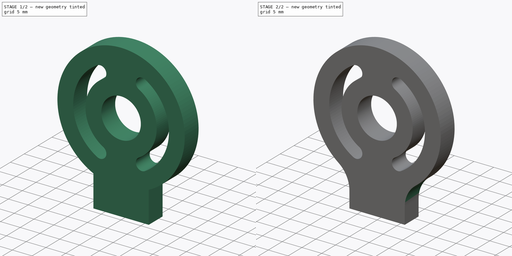
[diagram: build sequence overview — one tinted view per stage of 2, left to right]
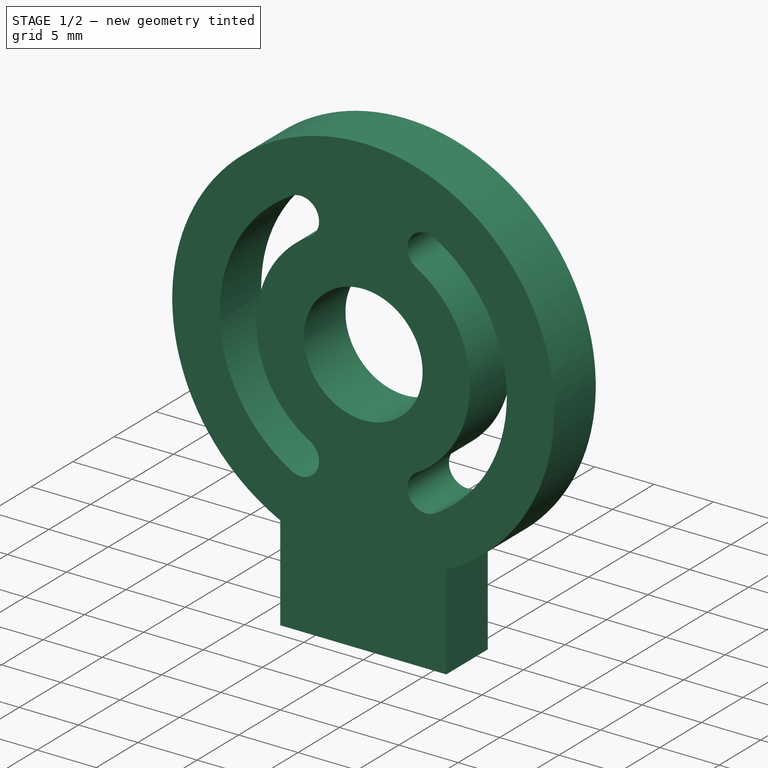
[diagram: stage 1 of 2 — iso view after this stage's code; geometry added in this stage tinted green]
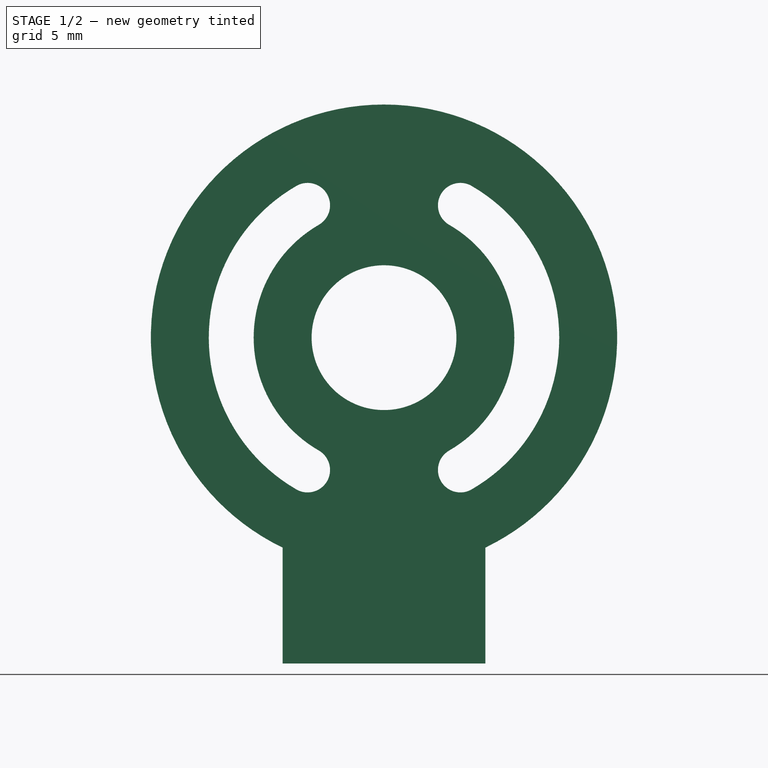
[diagram: stage 1 of 2 — front view after this stage's code; geometry added in this stage tinted green]
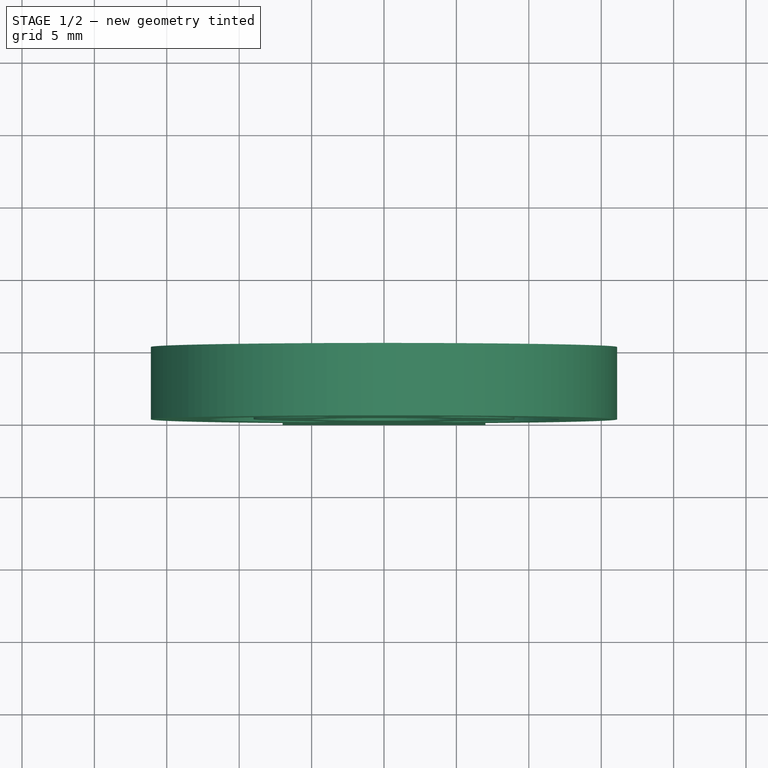
[diagram: stage 1 of 2 — top view after this stage's code; geometry added in this stage tinted green]
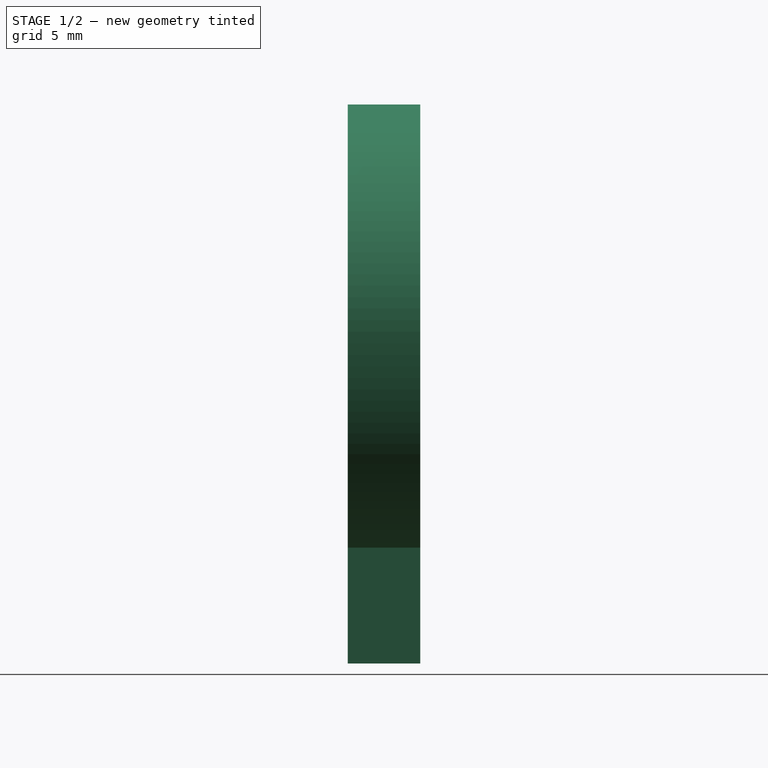
[diagram: stage 1 of 2 — right view after this stage's code; geometry added in this stage tinted green]
FCSTD DOCUMENT  (FreeCAD 0.16RUnknown)
Label: joint-i-top.006
License: All rights reserved
LicenseURL: http://en.wikipedia.org/wiki/All_rights_reserved
objects: Sketcher::SketchObject×2, Part::Extrusion×1, Part::Fillet×1
note: 4 computed .brp shape members not serialized (recipe doc carries the construction recipe); baked Part::Feature solids carry a one-line shape summary decoded from their .brp

FEATURE [Sketcher::SketchObject] Sketch
  sketch-geometry (4):
    g0: Circle [constr] CenterX=0 CenterY=0 CenterZ=0 NormalX=0 NormalY=0 NormalZ=1 Radius=5
    g1: LineSegment [constr] StartX=5 StartY=0 StartZ=0 EndX=7 EndY=0 EndZ=0
    g2: ArcOfCircle CenterX=0 CenterY=0 CenterZ=0 NormalX=0 NormalY=0 NormalZ=1 Radius=7 StartAngle=2.34599 EndAngle=7.07879
    g3: LineSegment StartX=-4.89898 StartY=5 StartZ=0 EndX=4.89898 EndY=5 EndZ=0
  constraints (9):
    c: Radius(g0) = 5
    c: Horizontal(g1)
    c: PointOnObject(g1,g0)
    c: PointOnObject(g1,g-1)
    c: DistanceX(g1,g1) = 2
    c: PointOnObject(g1,g2)
    c: Horizontal(g3)
    c: Coincident(g2,g3)
    c: Coincident(g2,g3)
FEATURE [Sketcher::SketchObject] Sketch001
  Placement = pos=(0,0,0) rot=(1,0,0;1.5708rad)
  sketch-geometry (28):
    g0: Circle CenterX=0 CenterY=22.4986 CenterZ=0 NormalX=0 NormalY=0 NormalZ=1 Radius=5
    g1: ArcOfCircle CenterX=0 CenterY=22.4986 CenterZ=0 NormalX=0 NormalY=0 NormalZ=1 Radius=12.1 StartAngle=2.0944 EndAngle=4.18879
    g2: ArcOfCircle CenterX=0 CenterY=22.4986 CenterZ=0 NormalX=0 NormalY=0 NormalZ=1 Radius=9 StartAngle=2.0944 EndAngle=4.18879
    g3: ArcOfCircle CenterX=0 CenterY=22.4986 CenterZ=0 NormalX=0 NormalY=0 NormalZ=1 Radius=9 StartAngle=5.23599 EndAngle=7.33038
    g4: ArcOfCircle CenterX=0 CenterY=22.4986 CenterZ=0 NormalX=0 NormalY=0 NormalZ=1 Radius=12.1 StartAngle=5.23599 EndAngle=7.33038
    g5: ArcOfCircle [constr] CenterX=0 CenterY=22.4986 CenterZ=0 NormalX=0 NormalY=0 NormalZ=1 Radius=9 StartAngle=4.18879 EndAngle=5.23599
    g6: ArcOfCircle [constr] CenterX=0 CenterY=22.4986 CenterZ=0 NormalX=0 NormalY=0 NormalZ=1 Radius=12.1 StartAngle=4.18879 EndAngle=5.23599
    g7: ArcOfCircle [constr] CenterX=0 CenterY=22.4986 CenterZ=0 NormalX=0 NormalY=0 NormalZ=1 Radius=9 StartAngle=1.0472 EndAngle=2.0944
    g8: ArcOfCircle [constr] CenterX=0 CenterY=22.4986 CenterZ=0 NormalX=0 NormalY=0 NormalZ=1 Radius=12.1 StartAngle=1.0472 EndAngle=2.0944
    g9: LineSegment [constr] StartX=6.05 StartY=12.0197 StartZ=0 EndX=4.5 EndY=14.7044 EndZ=0
    g10: LineSegment [constr] StartX=4.5 StartY=14.7044 StartZ=0 EndX=0 EndY=22.4986 EndZ=0
    g11: LineSegment [constr] StartX=-4.5 StartY=30.2928 StartZ=0 EndX=-6.05 EndY=32.9775 EndZ=0
    g12: LineSegment [constr] StartX=-6.05 StartY=12.0197 StartZ=0 EndX=-4.5 EndY=14.7044 EndZ=0
    g13: LineSegment [constr] StartX=-4.5 StartY=14.7044 StartZ=0 EndX=0 EndY=22.4986 EndZ=0
    g14: LineSegment [constr] StartX=0 StartY=22.4986 StartZ=0 EndX=4.5 EndY=30.2928 EndZ=0
    g15: LineSegment [constr] StartX=4.5 StartY=30.2928 StartZ=0 EndX=6.05 EndY=32.9775 EndZ=0
    g16: LineSegment [constr] StartX=0 StartY=22.4986 StartZ=0 EndX=-2.5 EndY=26.8287 EndZ=0
    g17: LineSegment [constr] StartX=-2.5 StartY=26.8287 StartZ=0 EndX=-4.5 EndY=30.2928 EndZ=0
    g18: LineSegment [constr] StartX=-6.05 StartY=32.9775 StartZ=0 EndX=-8.05 EndY=36.4416 EndZ=0
    g19: ArcOfCircle CenterX=-5.275 CenterY=13.3621 CenterZ=0 NormalX=0 NormalY=0 NormalZ=1 Radius=1.55 StartAngle=4.18879 EndAngle=7.33038
    g20: ArcOfCircle CenterX=5.275 CenterY=13.3621 CenterZ=0 NormalX=0 NormalY=0 NormalZ=1 Radius=1.55 StartAngle=2.0944 EndAngle=5.23599
    g21: ArcOfCircle CenterX=5.275 CenterY=31.6352 CenterZ=0 NormalX=0 NormalY=0 NormalZ=1 Radius=1.55 StartAngle=1.0472 EndAngle=4.18879
    g22: ArcOfCircle CenterX=-5.275 CenterY=31.6352 CenterZ=0 NormalX=0 NormalY=0 NormalZ=1 Radius=1.55 StartAngle=5.23599 EndAngle=8.37758
    g23: LineSegment StartX=-7 StartY=0 StartZ=0 EndX=7 EndY=0 EndZ=0
    g24: ArcOfCircle CenterX=0 CenterY=22.4986 CenterZ=0 NormalX=0 NormalY=0 NormalZ=1 Radius=16.1 StartAngle=5.16219 EndAngle=10.5458
    g25: LineSegment StartX=-7 StartY=0 StartZ=0 EndX=-7 EndY=8 EndZ=0
    g26: LineSegment StartX=7 StartY=0 StartZ=0 EndX=7 EndY=8 EndZ=0
    g27: LineSegment [constr] StartX=-4.5 StartY=30.2928 StartZ=0 EndX=4.5 EndY=30.2928 EndZ=0
  constraints (77):
    c: PointOnObject(g5,g-2)
    c: Coincident(g0,g1)
    c: Coincident(g0,g2)
    c: Coincident(g0,g3)
    c: Coincident(g0,g4)
    c: Coincident(g0,g5)
    c: Coincident(g0,g6)
    c: Coincident(g0,g7)
    c: Coincident(g0,g8)
    c: Coincident(g2,g5)
    c: Coincident(g1,g6)
    c: Coincident(g3,g5)
    c: Coincident(g4,g6)
    c: Coincident(g2,g7)
    c: Coincident(g3,g7)
    c: Coincident(g1,g8)
    c: Coincident(g4,g8)
    c: Radius(g0) = 5
    c: Coincident(g9,g10)
    c: Coincident(g12,g13)
    c: Coincident(g13,g14)
    c: Coincident(g14,g15)
    c: Coincident(g0,g10)
    c: Coincident(g0,g13)
    c: Coincident(g1,g11)
    c: Coincident(g2,g12)
    c: Coincident(g3,g9)
    c: Coincident(g4,g9)
    c: Coincident(g3,g14)
    c: Coincident(g4,g15)
    c: Parallel(g12,g13)
    c: Parallel(g13,g14)
    c: Parallel(g14,g15)
    c: Distance(g11) = 3.1
    c: Angle(g13,g10) = 1.0472
    c: Coincident(g16,g17)
    c: Coincident(g2,g11)
    c: Coincident(g2,g17)
    c: Coincident(g0,g16)
    c: PointOnObject(g16,g0)
    c: Distance(g17) = 4
    c: Coincident(g1,g18)
    c: Parallel(g18,g11)
    c: Parallel(g11,g17)
    c: Parallel(g17,g16)
    c: Parallel(g16,g10)
    c: Parallel(g10,g9)
    c: Equal(g18,g17)
    c: Coincident(g2,g22)
    c: Coincident(g1,g22)
    c: PointOnObject(g22,g11)
    c: Coincident(g1,g19)
    c: Coincident(g2,g19)
    c: PointOnObject(g19,g12)
    c: Coincident(g4,g20)
    c: Coincident(g3,g20)
    c: PointOnObject(g20,g9)
    c: Coincident(g3,g21)
    c: Coincident(g4,g21)
    c: PointOnObject(g21,g15)
    c: Horizontal(g23)
    c: Coincident(g0,g24)
    c: PointOnObject(g18,g24)
    c: PointOnObject(g-1,g23)
    c: Vertical(g25)
    c: Vertical(g26)
    c: Equal(g26,g25)
    c: Coincident(g23,g26)
    c: Coincident(g23,g25)
    c: DistanceX(g23,g23) = 14
    c: Coincident(g24,g26)
    c: Coincident(g24,g25)
    c: DistanceY(g26,g26) = 8
    c: Coincident(g12,g1)
    c: Horizontal(g27)
    c: Coincident(g2,g27)
    c: Coincident(g3,g27)
FEATURE [Part::Extrusion] Extrude001
  Base = -> Sketch001
  Dir = (0,5,0)
  Solid = true
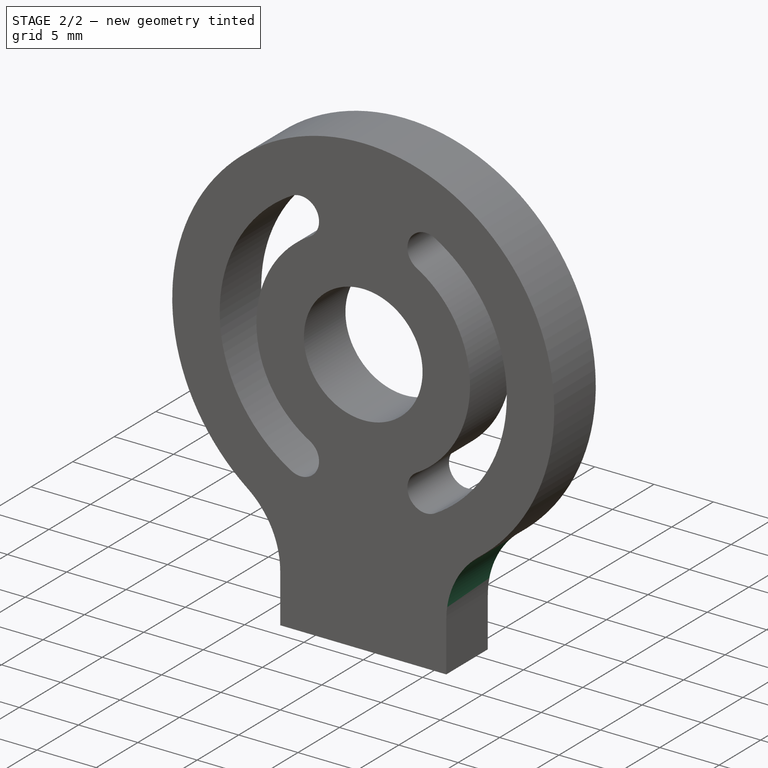
[diagram: stage 2 of 2 — iso view after this stage's code; geometry added in this stage tinted green]
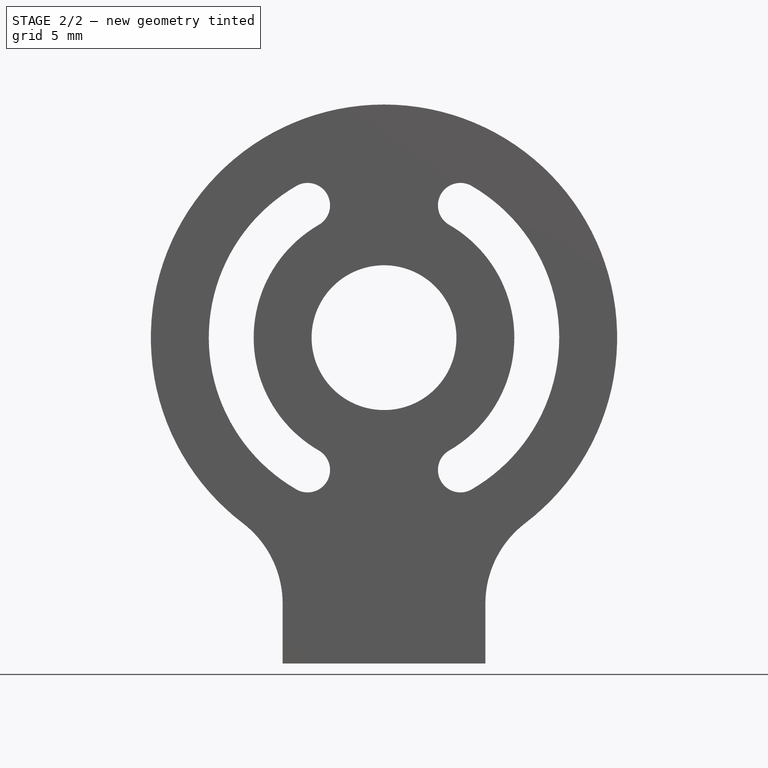
[diagram: stage 2 of 2 — front view after this stage's code; geometry added in this stage tinted green]
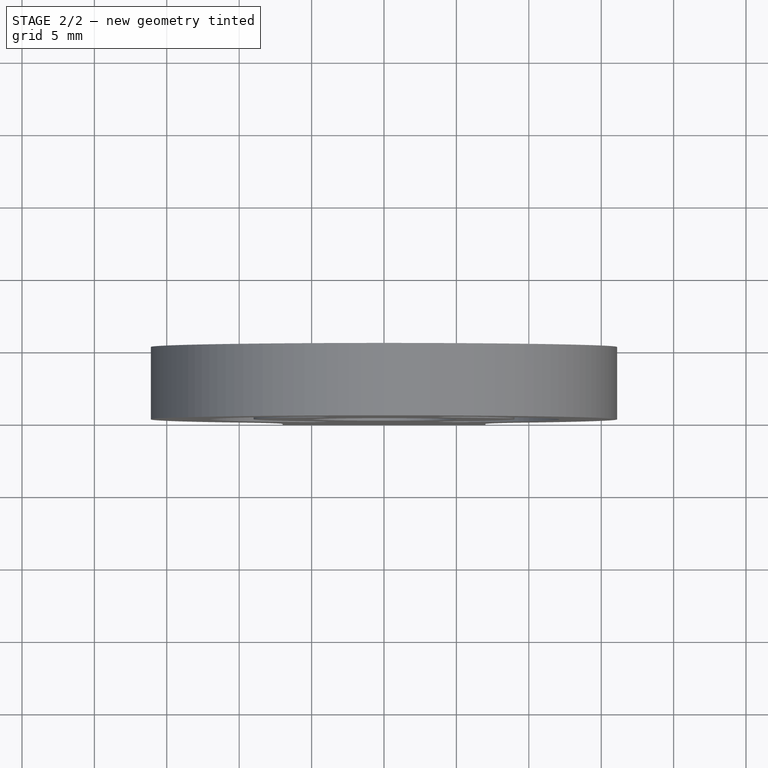
[diagram: stage 2 of 2 — top view after this stage's code; geometry added in this stage tinted green]
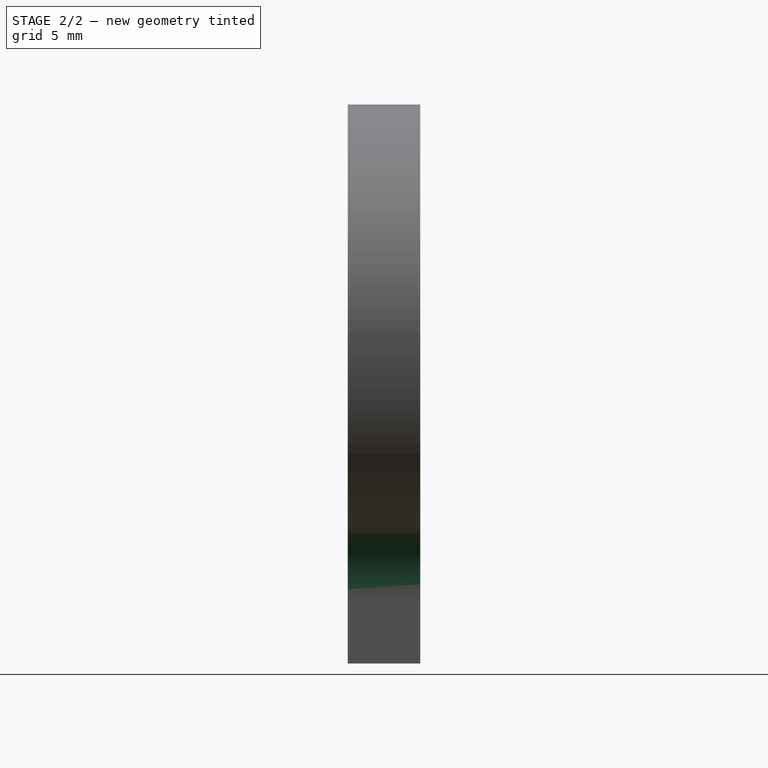
[diagram: stage 2 of 2 — right view after this stage's code; geometry added in this stage tinted green]
FEATURE [Part::Fillet] Fillet
  Base = -> Extrude001
  Edges = 2 edges r=7: [Edge5,Edge8]
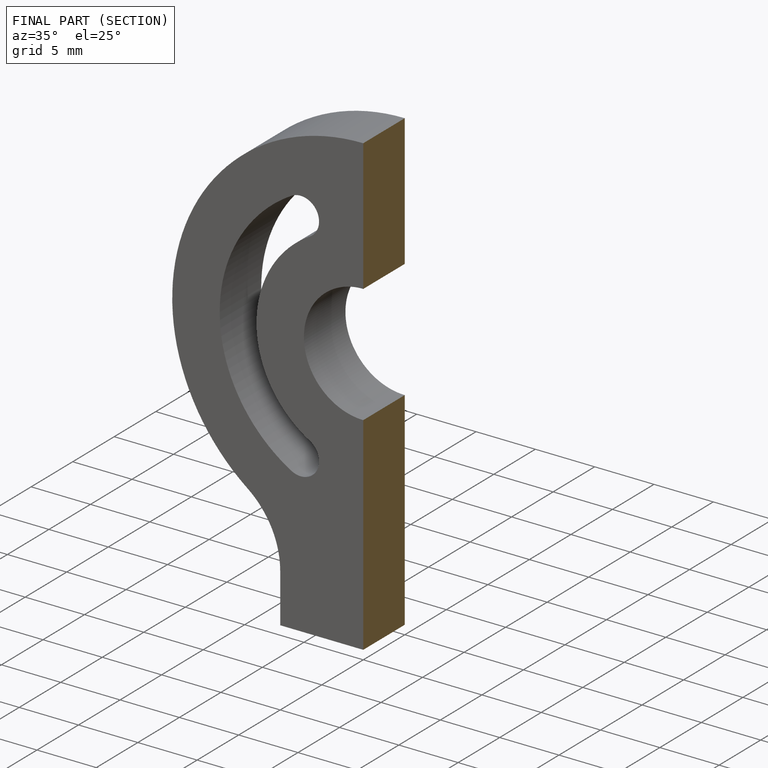
[diagram: finished part — half-section view (interior)]
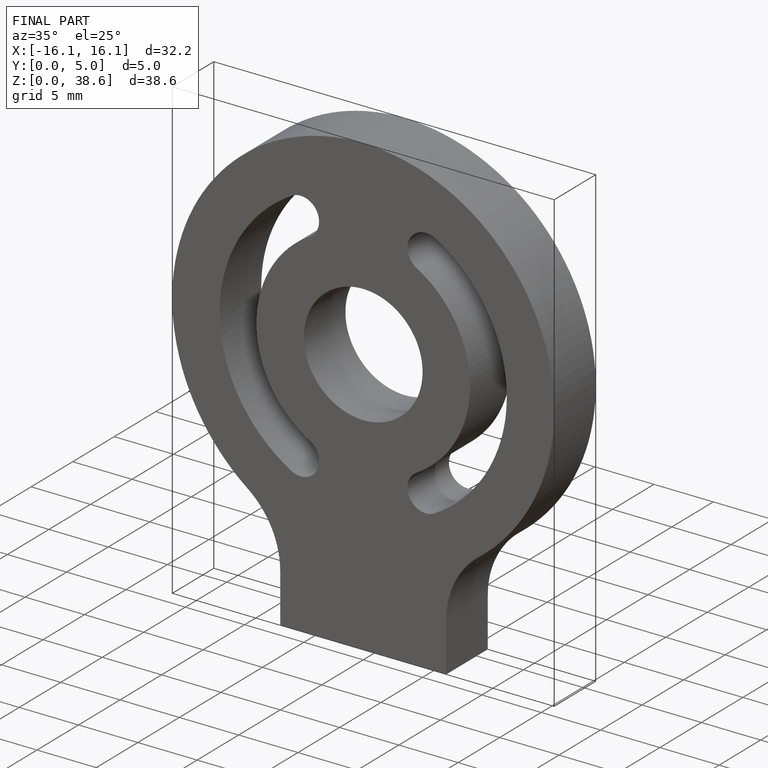
[diagram: finished part — iso view with bounding-box wireframe]
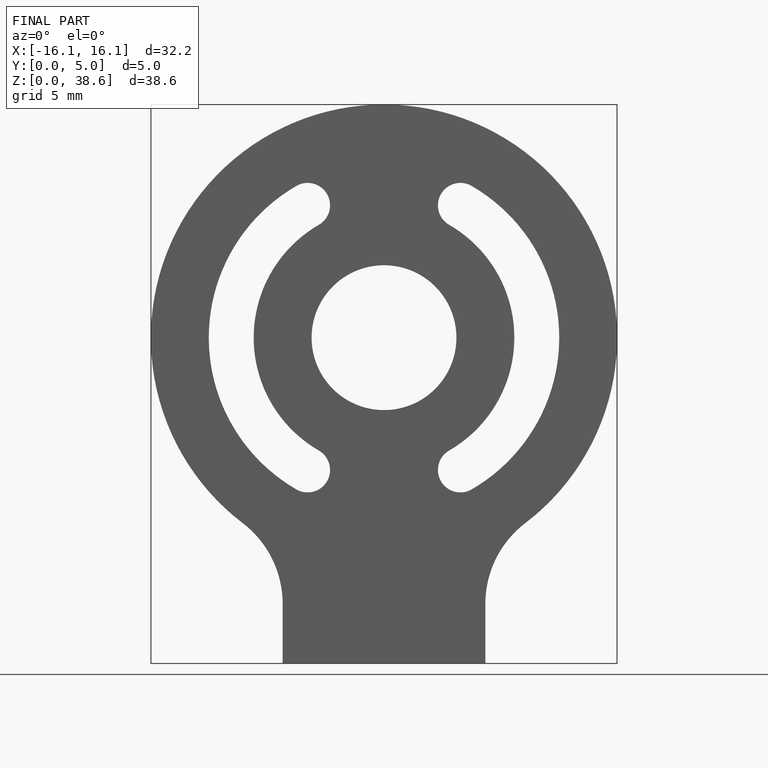
[diagram: finished part — front view with bounding-box wireframe]
